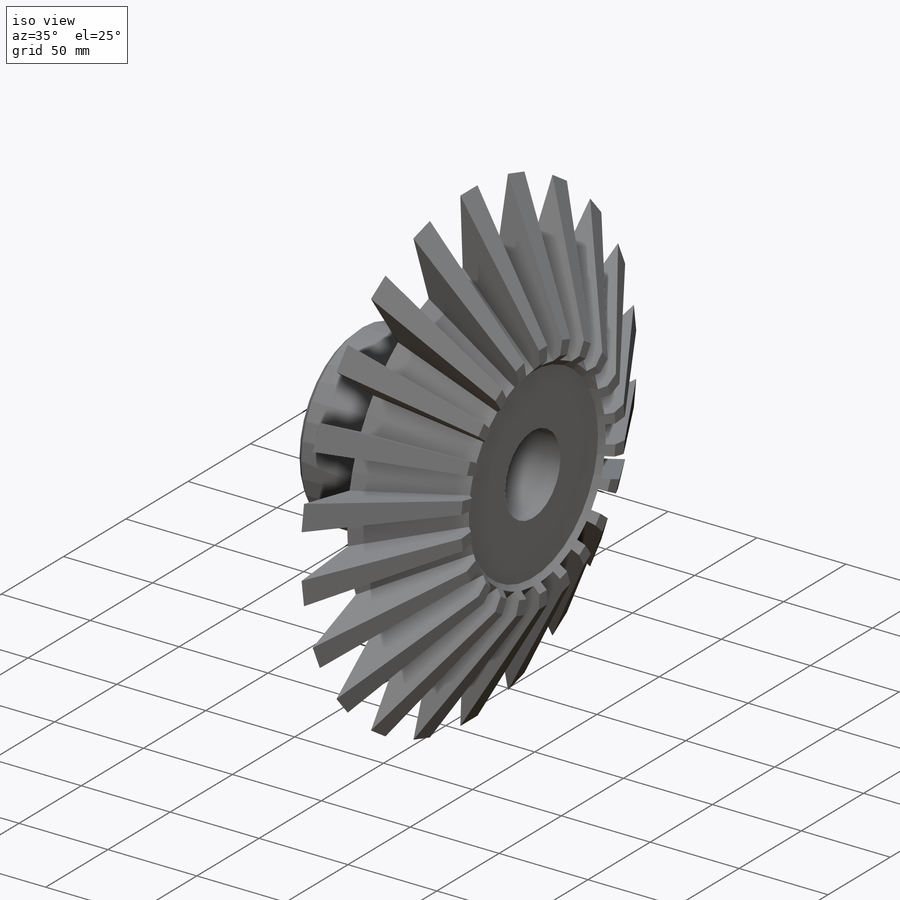
[diagram: iso view]
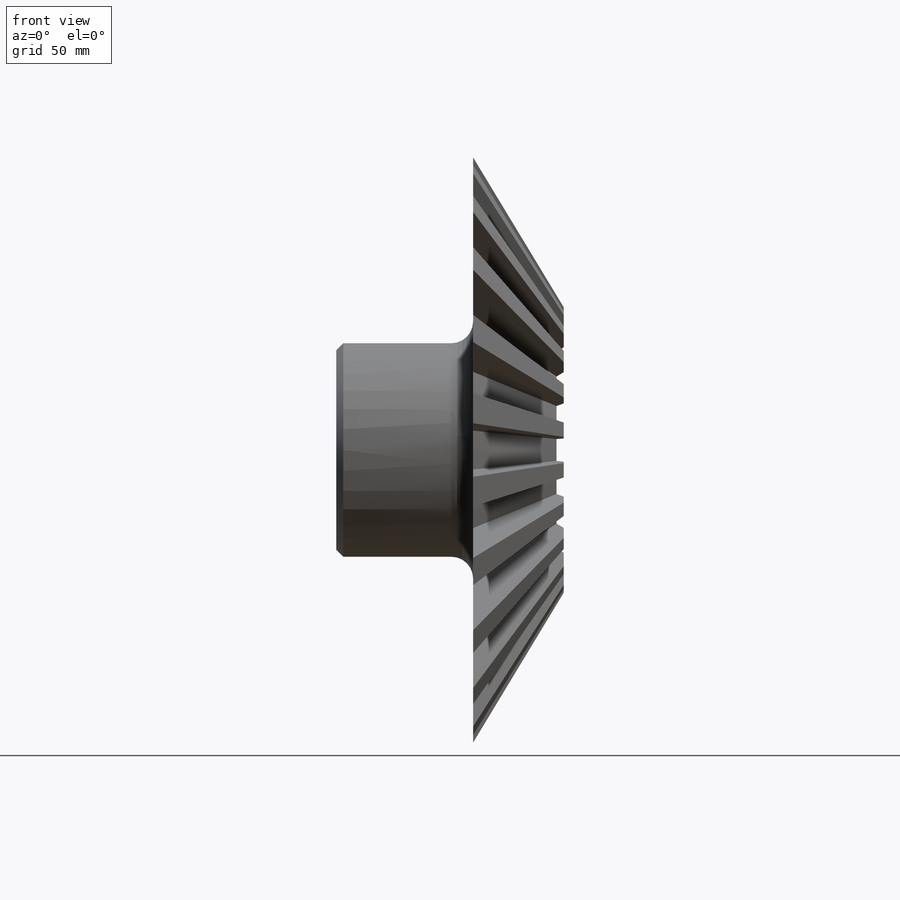
[diagram: front view]
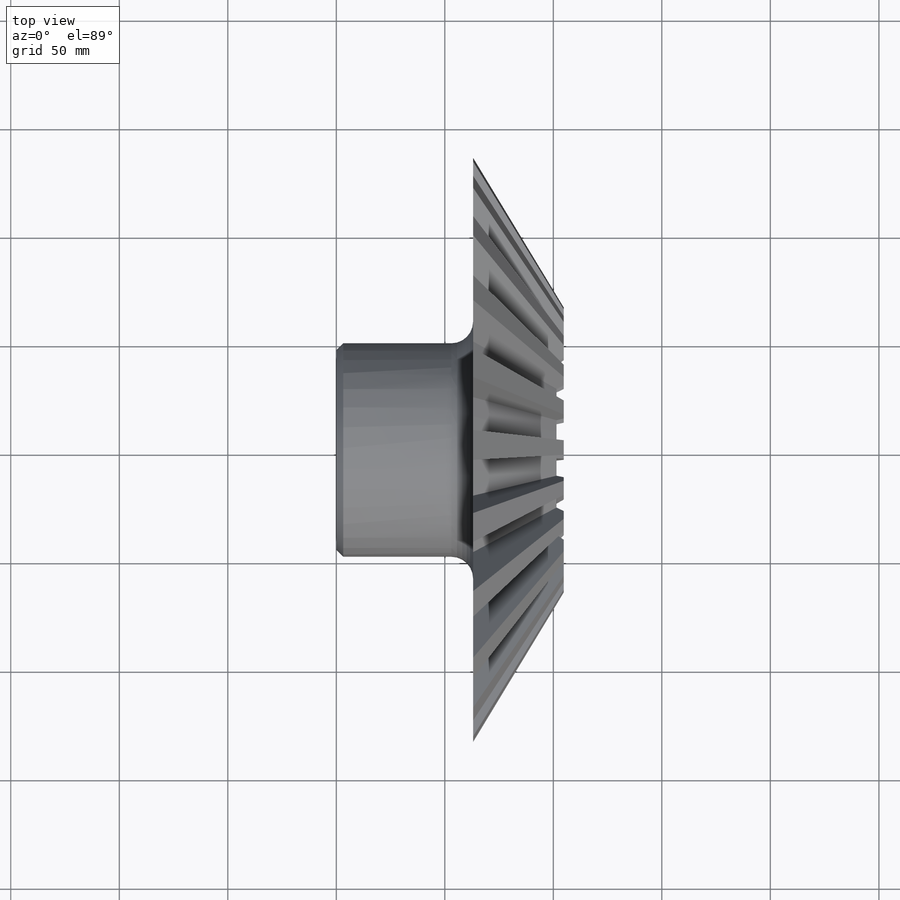
[diagram: top view]
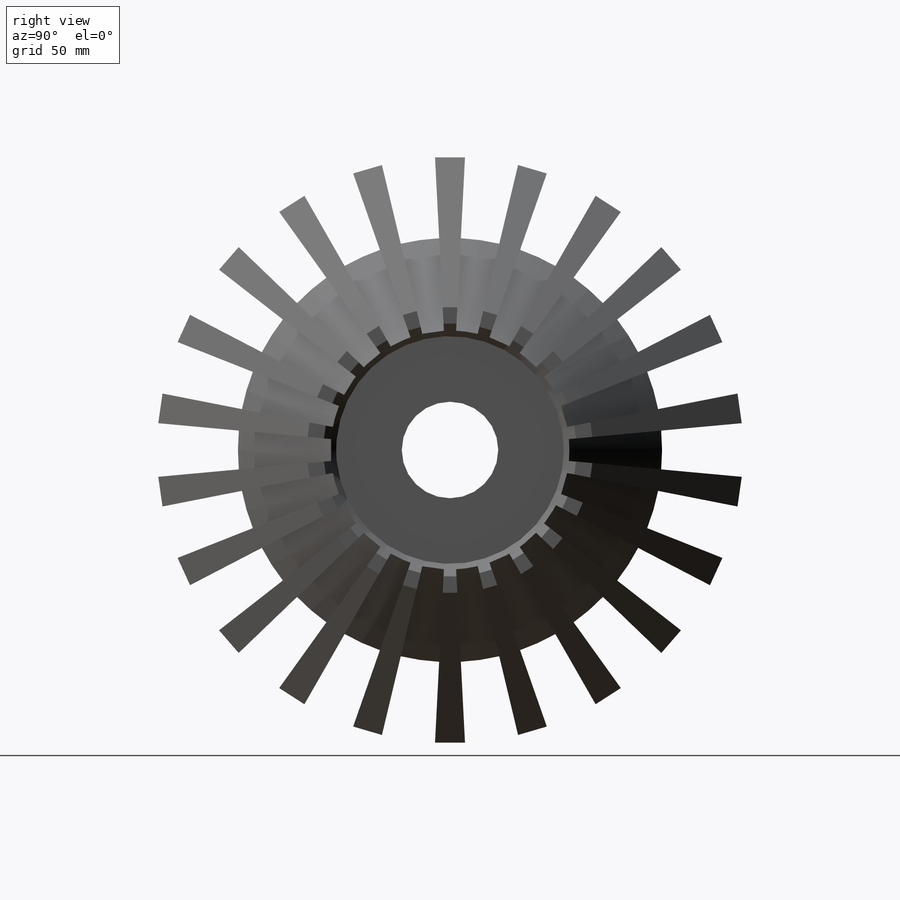
[diagram: right view]
SOLIDWORKS PART (.sldprt)
format: sldprt  version: not decoded by parser v0  size: 310,272 bytes
history: native  units: mm
features: plane x3, sketch x3, cut_revolve x2, material x1, revolve x1, pattern_circular x1 (+8 scaffold rows collapsed)
feature tree (19):
  scaffold x8  (default folders/planes/origin — collapsed)
  material  "Material <não especificado>"
  plane  "Plano frontal"
  plane  "Plano superior"
  plane  "Plano direito"
  sketch  "Esboço1"  dims[c1.D8=10.0mm c1.D1=44.45mm c1.D2=98.425mm c1.D6=3.175mm c1.D5=3.175mm c1.D3=43.0mm c1.D4=63.5mm c2.D6=63.5mm c3.D6=36.0deg c3.D7=~136.720901mm c3.D4=261.62mm c4.D7=~149.454431mm c4.D6=63.5mm c5.D6=31.0deg c5.D7=58.0mm c5.D4=270.0mm c6.D6=~20.025433mm]
  revolve  "Revolução1"  Angle=360deg
  sketch  "Esboço3"  dims[c1.D1=~180.044519mm c2.D1=36.0deg c3.D1=~71.418868mm c4.D1=31.0deg c5.D1=~41.747398mm c6.D1=48.0deg c6.D2=~150.571709mm c7.D2=57.0deg]
  cut_revolve  "Corte-Revolução2"  Angle=10.5deg
  pattern_circular  "PadrãoCircular1"  Count=22 Angle=16.363636deg
  sketch  "Esboço2"  dims[c1.D1=~9.726871mm c2.D1=45.0deg c2.D2=52.0mm c2.D3=6.0mm c3.D1=~74.399193mm c4.D1=~97.358253deg c5.D1=~8.010169mm c6.D1=~131.492028deg c7.D1=6.0mm c8.D1=45.0deg]
  cut_revolve  "Corte-Revolução1"  Angle=360deg
decode coverage: 7 of 7 modeling features carry decoded parameters
note: ~ marks probable driven/reference dimensions
note: suppression state not decoded; provenance and decode notes live in map.json
